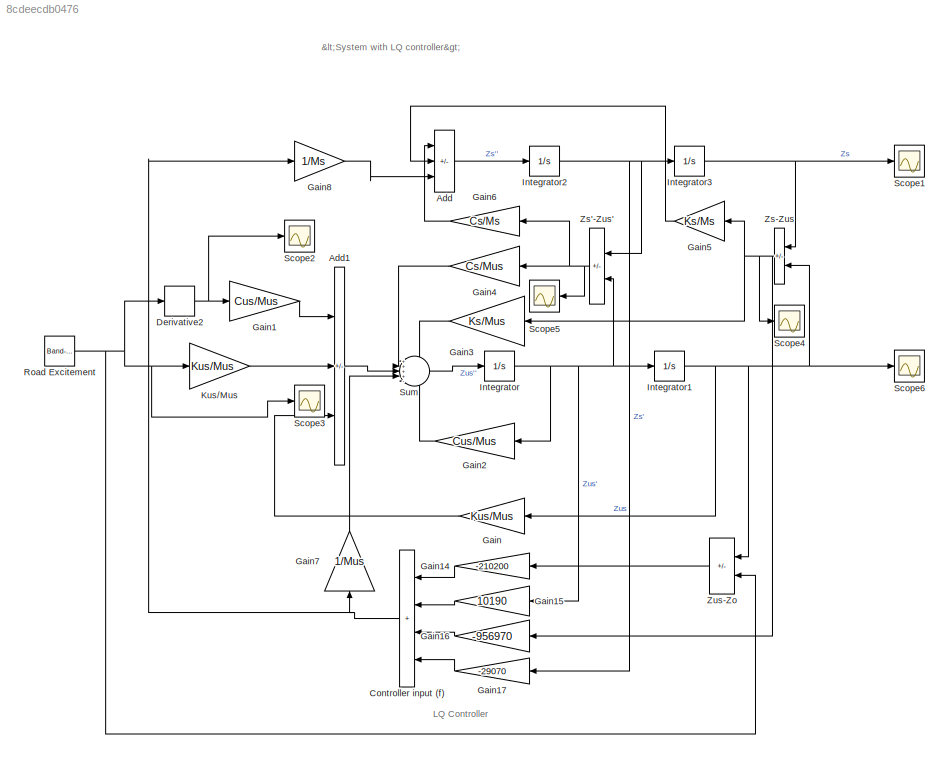
MODEL slx_8cdeecdb0476
KIND model
CONFIG AbsTol = auto
CONFIG EnableMultiTasking = off
CONFIG FixedStep = auto
CONFIG MaxStep = auto
CONFIG MinStep = auto
CONFIG RelTol = 1e-3
CONFIG SampleTimeConstraint = Unconstrained
CONFIG SolverName = VariableStepAuto
CONFIG StartTime = 0.0
CONFIG StopTime = 8
BLOCK [Sum] Add
  IconShape = rectangular
  Inputs = ---
  Ports = [3, 1]
BLOCK [Sum] Add1
  IconShape = rectangular
  Inputs = ++-
  Ports = [3, 1]
BLOCK [Sum] Controller input (f)
  IconShape = rectangular
  Inputs = ++++
  NameLocation = top
  Ports = [4, 1]
BLOCK [Derivative] Derivative2
BLOCK [Gain] Gain
  Gain = Kus/Mus
  NameLocation = top
BLOCK [Gain] Gain1
  Gain = Cus/Mus
BLOCK [Gain] Gain14
  Gain = -210200
  NameLocation = top
BLOCK [Gain] Gain15
  Gain = 10190
  NameLocation = top
BLOCK [Gain] Gain16
  Gain = -956970
  NameLocation = top
BLOCK [Gain] Gain17
  Gain = -29070
  NameLocation = top
BLOCK [Gain] Gain2
  Gain = Cus/Mus
  NameLocation = top
BLOCK [Gain] Gain3
  Gain = Ks/Mus
  NameLocation = top
BLOCK [Gain] Gain4
  Gain = Cs/Mus
  NameLocation = top
BLOCK [Gain] Gain5
  Gain = Ks/Ms
  NameLocation = top
BLOCK [Gain] Gain6
  Gain = Cs/Ms
  NameLocation = top
BLOCK [Gain] Gain7
  Gain = 1/Mus
  NameLocation = right
BLOCK [Gain] Gain8
  Gain = 1/Ms
BLOCK [Integrator] Integrator
  Ports = [1, 1]
BLOCK [Integrator] Integrator1
  Ports = [1, 1]
BLOCK [Integrator] Integrator2
  Ports = [1, 1]
BLOCK [Integrator] Integrator3
  Ports = [1, 1]
BLOCK [Gain] Kus//Mus
  Gain = Kus/Mus
BLOCK [Reference] Road Excitement  REF=simulink/Sources/Band-Limited
White Noise
  Ports = [0, 1]
  SourceBlock = simulink/Sources/Band-Limited\nWhite Noise
  SourceProductBaseCode = SL
  SourceType = Band-Limited White Noise.
BLOCK [Scope] Scope1
  Floating = off
  NumInputPorts = 1
  Ports = [1]
  ScopeSpecificationString = Simulink.scopes.TimeScopeBlockCfg('CurrentConfiguration', extmgr.ConfigurationSet(extmgr.Configuration('Core','General UI',true),extmgr.Configuration('Core','Source UI',true),extmgr.Configuration('Sources','WiredSimulink',true,'DataLoggingVariableName','ScopeData2'),extmgr.Configuration('Visuals','Time Domain',true,'SerializedDisplays',{struct('MinYLimReal','-0.27853','MaxYLimReal','0.22752','YLab...<+1416ch>
BLOCK [Scope] Scope2
  Floating = off
  NumInputPorts = 1
  Ports = [1]
  ScopeSpecificationString = Simulink.scopes.TimeScopeBlockCfg('CurrentConfiguration', extmgr.ConfigurationSet(extmgr.Configuration('Core','General UI',true),extmgr.Configuration('Core','Source UI',true),extmgr.Configuration('Sources','WiredSimulink',true,'DataLoggingVariableName','ScopeData3'),extmgr.Configuration('Visuals','Time Domain',true,'SerializedDisplays',{struct('MinYLimReal','-195.01077','MaxYLimReal','207.54349','...<+1384ch>
BLOCK [Scope] Scope3
  Floating = off
  NumInputPorts = 1
  Ports = [1]
  ScopeSpecificationString = Simulink.scopes.TimeScopeBlockCfg('CurrentConfiguration', extmgr.ConfigurationSet(extmgr.Configuration('Core','General UI',true),extmgr.Configuration('Core','Source UI',true),extmgr.Configuration('Sources','WiredSimulink',true),extmgr.Configuration('Visuals','Time Domain',true,'SerializedDisplays',{struct('MinYLimReal','-1.43846','MaxYLimReal','1.54557','YLabelReal','','MinYLimMag','0.00000','MaxY...<+1335ch>
BLOCK [Scope] Scope4
  Floating = off
  NumInputPorts = 1
  Ports = [1]
  ScopeSpecificationString = Simulink.scopes.TimeScopeBlockCfg('CurrentConfiguration', extmgr.ConfigurationSet(extmgr.Configuration('Core','General UI',true),extmgr.Configuration('Core','Source UI',true),extmgr.Configuration('Sources','WiredSimulink',true,'DataLoggingVariableName','ScopeData4'),extmgr.Configuration('Visuals','Time Domain',true,'SerializedDisplays',{struct('MinYLimReal','-0.72531','MaxYLimReal','0.71724','YLab...<+1420ch>
BLOCK [Scope] Scope5
  Floating = off
  NameLocation = top
  NumInputPorts = 1
  Ports = [1]
  ScopeSpecificationString = Simulink.scopes.TimeScopeBlockCfg('CurrentConfiguration', extmgr.ConfigurationSet(extmgr.Configuration('Core','General UI',true),extmgr.Configuration('Core','Source UI',true),extmgr.Configuration('Sources','WiredSimulink',true,'DataLoggingVariableName','ScopeData5'),extmgr.Configuration('Visuals','Time Domain',true,'SerializedDisplays',{struct('MinYLimReal','-35.78757','MaxYLimReal','34.10984','YL...<+1375ch>
BLOCK [Scope] Scope6
  Floating = off
  NumInputPorts = 1
  Ports = [1]
  ScopeSpecificationString = Simulink.scopes.TimeScopeBlockCfg('CurrentConfiguration', extmgr.ConfigurationSet(extmgr.Configuration('Core','General UI',true),extmgr.Configuration('Core','Source UI',true),extmgr.Configuration('Sources','WiredSimulink',true,'DataLoggingVariableName','ScopeData1'),extmgr.Configuration('Visuals','Time Domain',true,'SerializedDisplays',{struct('MinYLimReal','-0.72744','MaxYLimReal','0.72205','YLab...<+1417ch>
BLOCK [Sum] Sum
  Inputs = ++++-
  Ports = [5, 1]
BLOCK [Sum] Zs'-Zus'
  IconShape = rectangular
  Inputs = +-
  NameLocation = top
  Ports = [2, 1]
BLOCK [Sum] Zs-Zus
  IconShape = rectangular
  Inputs = +-
  NameLocation = top
  Ports = [2, 1]
BLOCK [Sum] Zus-Zo
  IconShape = rectangular
  Inputs = +-
  NameLocation = top
  Ports = [2, 1]
ANNOTATION (root): <System with LQ controller>
ANNOTATION (root): LQ Controller
LINE Add1:1 -> Sum:3
LINE Add:1 -> Integrator2:1
NET Controller input (f):1 -> Gain7:1, Gain8:1
NET Derivative2:1 -> Gain1:1, Scope2:1
LINE Gain14:1 -> Controller input (f):1
LINE Gain15:1 -> Controller input (f):2
LINE Gain16:1 -> Controller input (f):3
LINE Gain17:1 -> Controller input (f):4
LINE Gain1:1 -> Add1:1
LINE Gain2:1 -> Sum:5
LINE Gain3:1 -> Sum:1
LINE Gain4:1 -> Sum:2
LINE Gain5:1 -> Add:2
LINE Gain6:1 -> Add:1
LINE Gain7:1 -> Sum:4
LINE Gain8:1 -> Add:3
LINE Gain:1 -> Add1:3
NET Integrator1:1 -> Gain:1, Scope6:1, Zs-Zus:2, Zus-Zo:1
NET Integrator2:1 -> Gain17:1, Integrator3:1, Zs'-Zus':1
NET Integrator3:1 -> Scope1:1, Zs-Zus:1
NET Integrator:1 -> Gain15:1, Gain2:1, Integrator1:1, Zs'-Zus':2
LINE Kus//Mus:1 -> Add1:2
NET Road Excitement:1 -> Derivative2:1, Kus//Mus:1, Scope3:1, Zus-Zo:2
LINE Sum:1 -> Integrator:1
NET Zs'-Zus':1 -> Gain4:1, Gain6:1, Scope5:1
NET Zs-Zus:1 -> Gain16:1, Gain3:1, Gain5:1, Scope4:1
LINE Zus-Zo:1 -> Gain14:1
note: NET lines group one-source signal fan-out (src -> all destinations, sorted); 1:1 wires keep LINE
